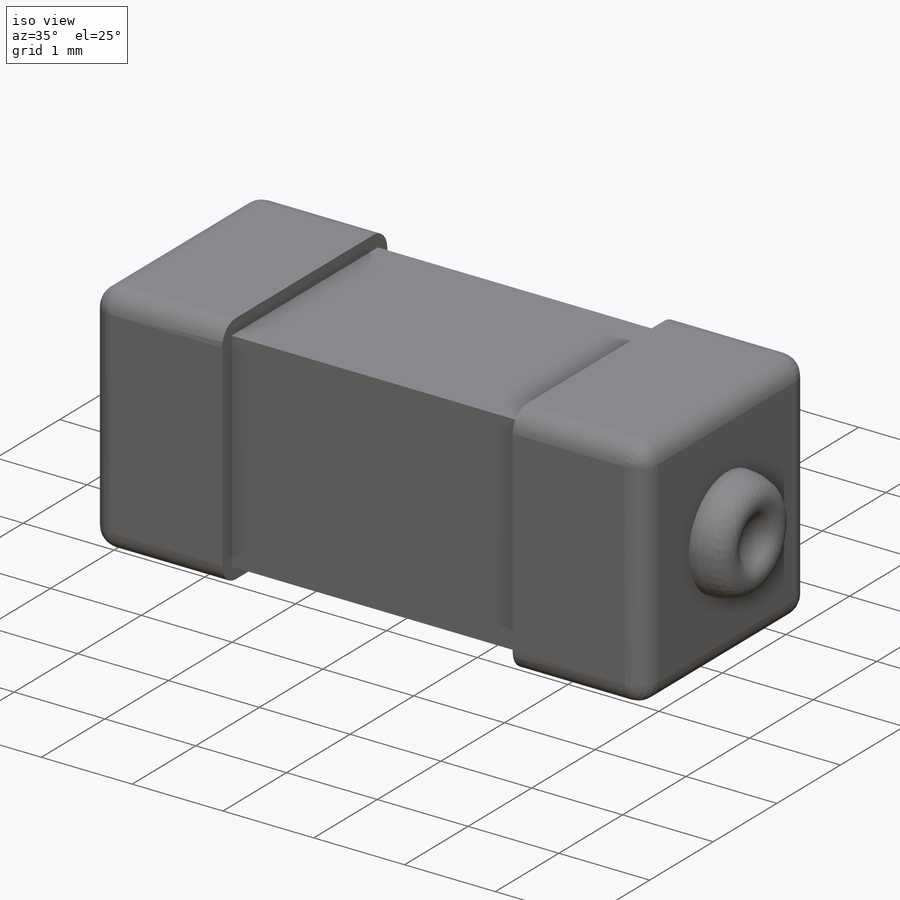
[diagram: iso view]
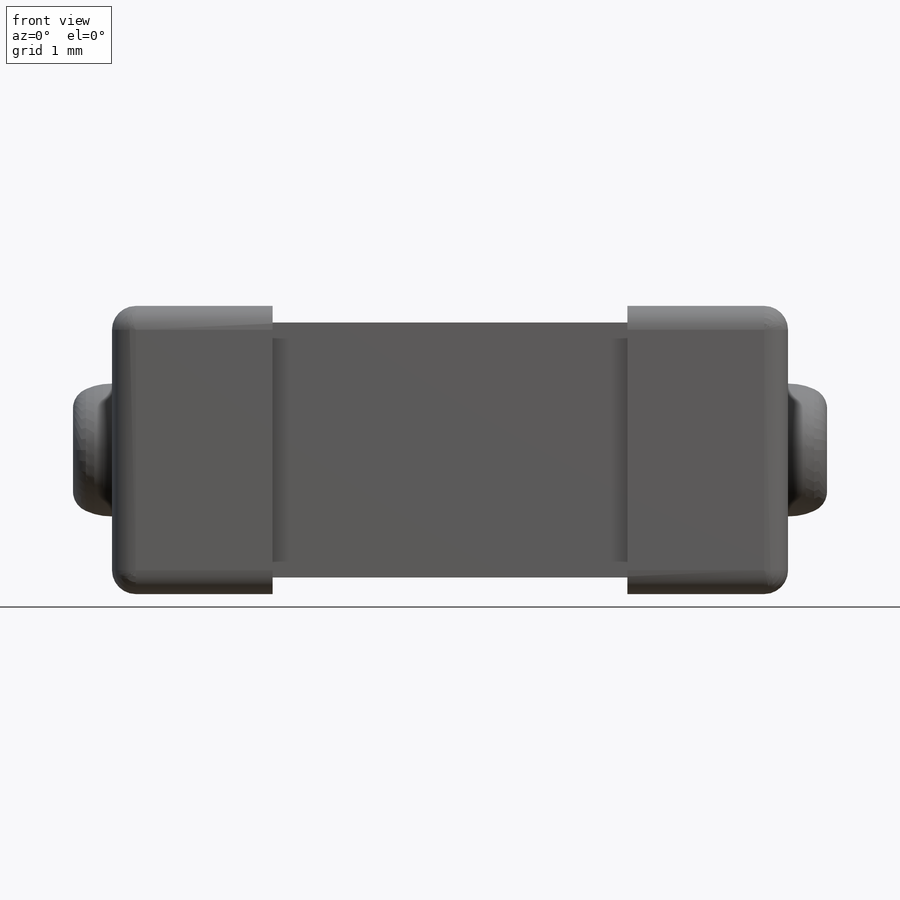
[diagram: front view]
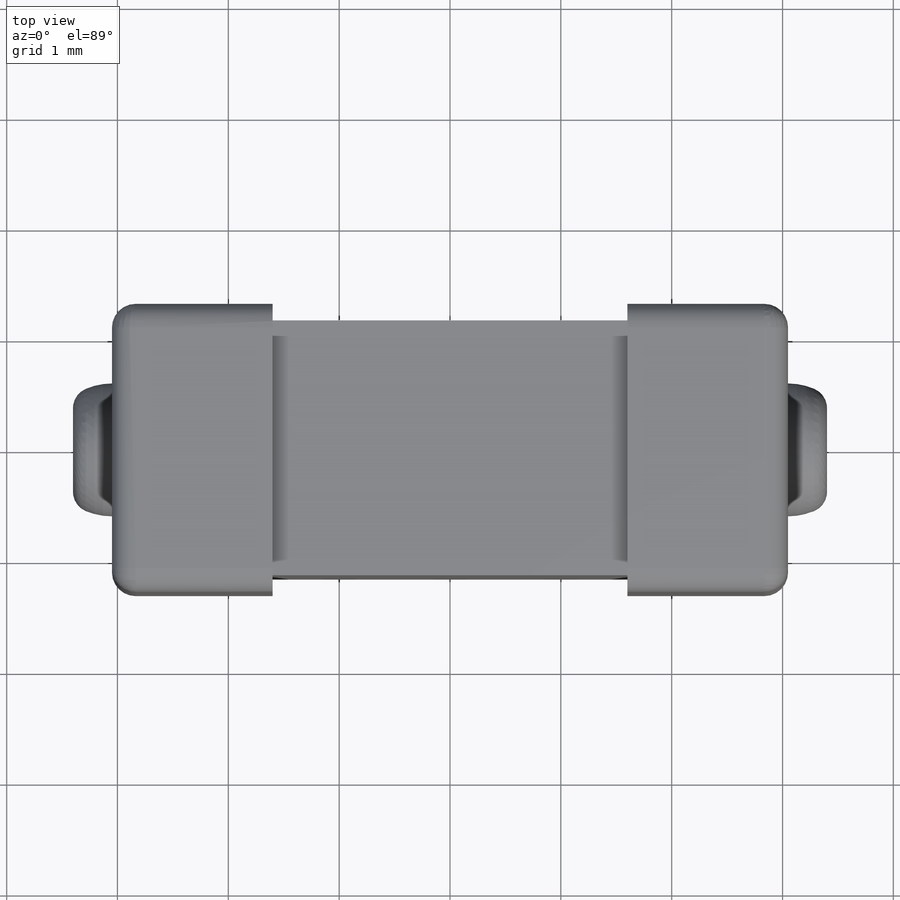
[diagram: top view]
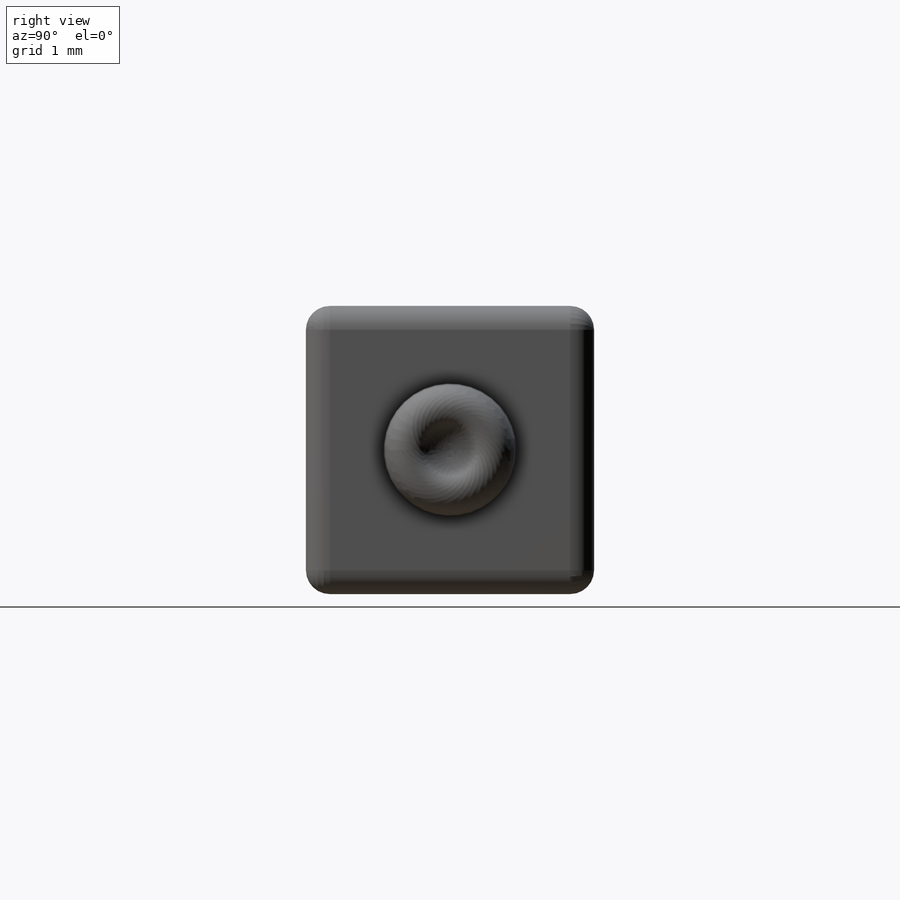
[diagram: right view]
SOLIDWORKS PART (.sldprt)
format: sldprt  version: not decoded by parser v0  size: 364,032 bytes
history: native  units: mm
features: sketch x3, extrude x2, material x1, revolve x1, fillet x1, mirror x1 (+12 scaffold rows collapsed)
feature tree (21):
  scaffold x12  (default folders/planes/origin — collapsed)
  material  "Material <not specified>"
  sketch  "Sketch1"  dims[D1=2.3mm]
  extrude  "Boss-Extrude1"  Depth=3.2mm
  sketch  "Sketch4"  dims[D1=2.6mm]
  extrude  "Boss-Extrude2"  Depth=1.45mm
  sketch  "Sketch5"  dims[c1.D1=1.2mm c1.D3=0.6mm c1.D4=0.2mm c1.D2=0.18mm c2.D4=0.16mm]
  revolve  "Revolve4"  Angle=360deg
  fillet  "Fillet1"  Radius=0.215mm
  mirror  "Mirror2"
decode coverage: 7 of 8 modeling features carry decoded parameters
note: suppression state not decoded; provenance and decode notes live in map.json
